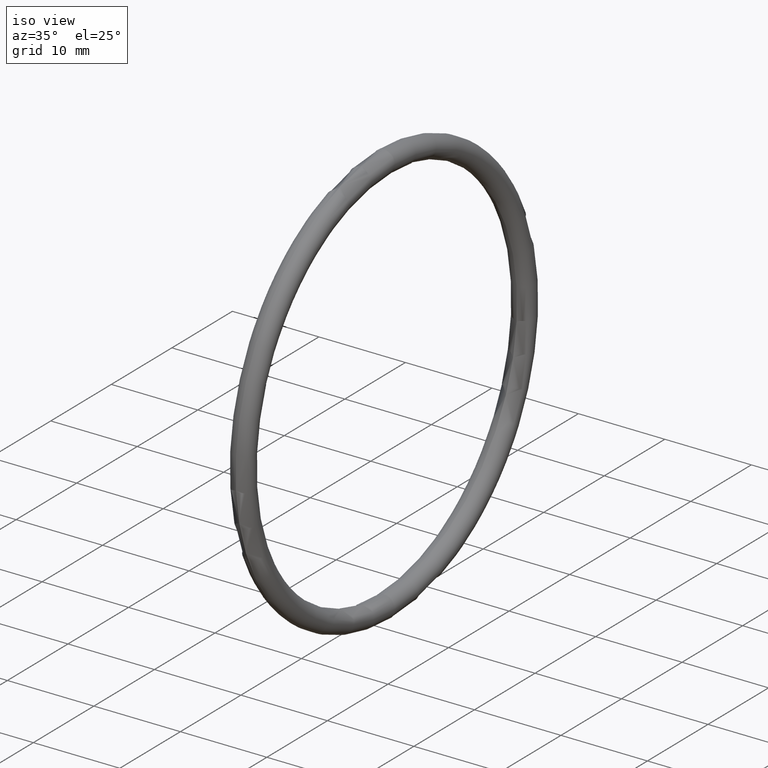
[diagram: clean part render]
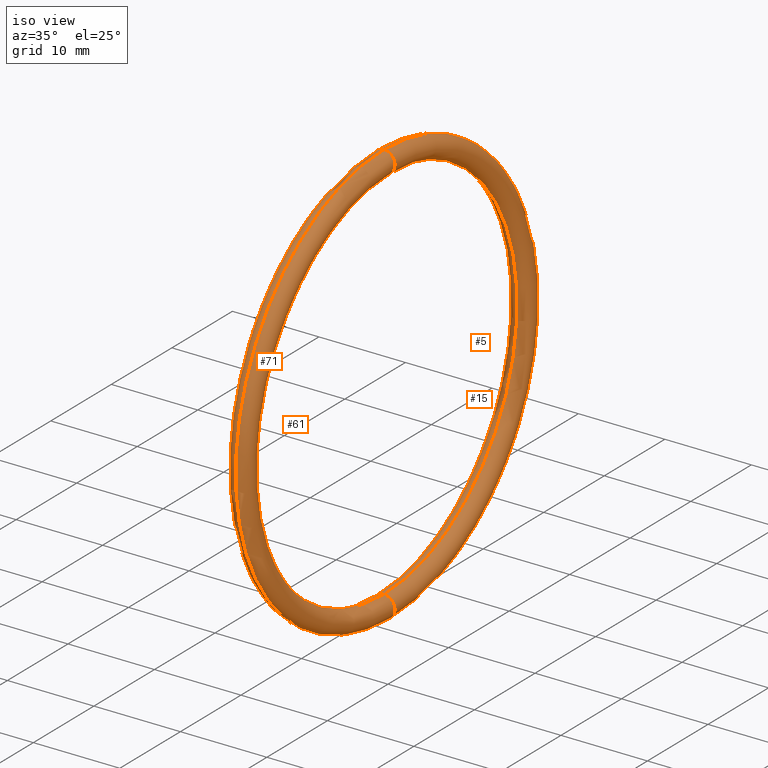
[diagram: same view with one multi-face feature highlighted, each face labeled with its STEP entity id]
A machine part, iso view. The highlighted faces form ONE feature: a constant-radius fillet chain: 4 tangent blend faces with common blend radius 1.27 mm. The faces share edges in the B-rep.
Their STEP definitions:
[1] entity #5 (Torus):
#2 = DIRECTION ( 'NONE',  ( 0.0000000000000000000, 0.0000000000000000000, 1.000000000000000000 ) ) ;
#3 = DIRECTION ( 'NONE',  ( -1.000000000000000000, 0.0000000000000000000, 0.0000000000000000000 ) ) ;
#5 = ADVANCED_FACE ( 'NONE', ( #32 ), #84, .T. ) ;
#9 = DIRECTION ( 'NONE',  ( 0.0000000000000000000, 0.0000000000000000000, 1.000000000000000000 ) ) ;
#10 = DIRECTION ( 'NONE',  ( -1.000000000000000000, 0.0000000000000000000, 0.0000000000000000000 ) ) ;
#11 = CARTESIAN_POINT ( 'NONE',  ( 0.1000000000000001200, 0.0000000000000000000, 0.0000000000000000000 ) ) ;
#13 = EDGE_CURVE ( 'NONE', #21, #91, #97, .T. ) ;
#16 = VERTEX_POINT ( 'NONE', #57 ) ;
#21 = VERTEX_POINT ( 'NONE', #46 ) ;
#22 = CARTESIAN_POINT ( 'NONE',  ( 0.1000000000000001200, 0.0000000000000000000, 0.9149999999999999200 ) ) ;
#23 = AXIS2_PLACEMENT_3D ( 'NONE', #22, #30, #29 ) ;
#24 = CIRCLE ( 'NONE', #23, 0.05000000000000001000 ) ;
#27 = CARTESIAN_POINT ( 'NONE',  ( 0.1000000000000001200, 0.0000000000000000000, 0.0000000000000000000 ) ) ;
#28 = CARTESIAN_POINT ( 'NONE',  ( 0.1000000000000001200, 1.181784161177195800E-016, -0.9649999999999999700 ) ) ;
#29 = DIRECTION ( 'NONE',  ( 0.0000000000000000000, 0.0000000000000000000, -1.000000000000000000 ) ) ;
#30 = DIRECTION ( 'NONE',  ( 0.0000000000000000000, -1.000000000000000000, 0.0000000000000000000 ) ) ;
#31 = AXIS2_PLACEMENT_3D ( 'NONE', #11, #10, #9 ) ;
#32 = FACE_OUTER_BOUND ( 'NONE', #62, .T. ) ;
#46 = CARTESIAN_POINT ( 'NONE',  ( 0.1000000000000001200, 0.0000000000000000000, 0.9649999999999999700 ) ) ;
#49 = DIRECTION ( 'NONE',  ( 0.0000000000000000000, 0.0000000000000000000, 1.000000000000000000 ) ) ;
#50 = DIRECTION ( 'NONE',  ( -1.000000000000000000, 0.0000000000000000000, 0.0000000000000000000 ) ) ;
#51 = AXIS2_PLACEMENT_3D ( 'NONE', #27, #50, #49 ) ;
#57 = CARTESIAN_POINT ( 'NONE',  ( 0.1000000000000001200, 0.0000000000000000000, 0.8649999999999998800 ) ) ;
#62 = EDGE_LOOP ( 'NONE', ( #63, #83, #68, #64 ) ) ;
#63 = ORIENTED_EDGE ( 'NONE', *, *, #13, .F. ) ;
#64 = ORIENTED_EDGE ( 'NONE', *, *, #65, .T. ) ;
#65 = EDGE_CURVE ( 'NONE', #78, #91, #109, .T. ) ;
#68 = ORIENTED_EDGE ( 'NONE', *, *, #119, .T. ) ;
#78 = VERTEX_POINT ( 'NONE', #102 ) ;
#83 = ORIENTED_EDGE ( 'NONE', *, *, #88, .F. ) ;
#84 = TOROIDAL_SURFACE ( 'NONE', #31, 0.9149999999999999200, 0.05000000000000000300 ) ;
#88 = EDGE_CURVE ( 'NONE', #16, #21, #24, .T. ) ;
#91 = VERTEX_POINT ( 'NONE', #28 ) ;
#95 = CARTESIAN_POINT ( 'NONE',  ( 0.1000000000000001200, 0.0000000000000000000, 0.0000000000000000000 ) ) ;
#96 = AXIS2_PLACEMENT_3D ( 'NONE', #95, #3, #2 ) ;
#97 = CIRCLE ( 'NONE', #96, 0.9649999999999999700 ) ;
#102 = CARTESIAN_POINT ( 'NONE',  ( 0.1000000000000001200, 1.059319481262460500E-016, -0.8649999999999998800 ) ) ;
#105 = DIRECTION ( 'NONE',  ( 0.0000000000000000000, -1.224646799147351700E-016, 1.000000000000000000 ) ) ;
#106 = DIRECTION ( 'NONE',  ( 0.0000000000000000000, 1.000000000000000000, 1.224646799147353200E-016 ) ) ;
#107 = CARTESIAN_POINT ( 'NONE',  ( 0.1000000000000001200, 1.120551821219828000E-016, -0.9149999999999999200 ) ) ;
#108 = AXIS2_PLACEMENT_3D ( 'NONE', #107, #106, #105 ) ;
#109 = CIRCLE ( 'NONE', #108, 0.05000000000000001000 ) ;
#111 = CIRCLE ( 'NONE', #51, 0.8649999999999998800 ) ;
#119 = EDGE_CURVE ( 'NONE', #16, #78, #111, .T. ) ;
[2] entity #61 (Torus):
#4 = EDGE_LOOP ( 'NONE', ( #86, #87, #67, #8 ) ) ;
#8 = ORIENTED_EDGE ( 'NONE', *, *, #88, .T. ) ;
#16 = VERTEX_POINT ( 'NONE', #57 ) ;
#17 = FACE_OUTER_BOUND ( 'NONE', #4, .T. ) ;
#18 = DIRECTION ( 'NONE',  ( 0.0000000000000000000, 0.0000000000000000000, 1.000000000000000000 ) ) ;
#19 = DIRECTION ( 'NONE',  ( -1.000000000000000000, 0.0000000000000000000, 0.0000000000000000000 ) ) ;
#21 = VERTEX_POINT ( 'NONE', #46 ) ;
#22 = CARTESIAN_POINT ( 'NONE',  ( 0.1000000000000001200, 0.0000000000000000000, 0.9149999999999999200 ) ) ;
#23 = AXIS2_PLACEMENT_3D ( 'NONE', #22, #30, #29 ) ;
#24 = CIRCLE ( 'NONE', #23, 0.05000000000000001000 ) ;
#26 = CIRCLE ( 'NONE', #115, 0.8649999999999998800 ) ;
#28 = CARTESIAN_POINT ( 'NONE',  ( 0.1000000000000001200, 1.181784161177195800E-016, -0.9649999999999999700 ) ) ;
#29 = DIRECTION ( 'NONE',  ( 0.0000000000000000000, 0.0000000000000000000, -1.000000000000000000 ) ) ;
#30 = DIRECTION ( 'NONE',  ( 0.0000000000000000000, -1.000000000000000000, 0.0000000000000000000 ) ) ;
#35 = CARTESIAN_POINT ( 'NONE',  ( 0.1000000000000001200, 0.0000000000000000000, 0.0000000000000000000 ) ) ;
#40 = EDGE_CURVE ( 'NONE', #91, #21, #93, .T. ) ;
#41 = DIRECTION ( 'NONE',  ( 0.0000000000000000000, 0.0000000000000000000, 1.000000000000000000 ) ) ;
#42 = DIRECTION ( 'NONE',  ( -1.000000000000000000, 0.0000000000000000000, 0.0000000000000000000 ) ) ;
#43 = AXIS2_PLACEMENT_3D ( 'NONE', #35, #42, #41 ) ;
#44 = TOROIDAL_SURFACE ( 'NONE', #43, 0.9149999999999999200, 0.05000000000000000300 ) ;
#45 = CARTESIAN_POINT ( 'NONE',  ( 0.1000000000000001200, 0.0000000000000000000, 0.0000000000000000000 ) ) ;
#46 = CARTESIAN_POINT ( 'NONE',  ( 0.1000000000000001200, 0.0000000000000000000, 0.9649999999999999700 ) ) ;
#57 = CARTESIAN_POINT ( 'NONE',  ( 0.1000000000000001200, 0.0000000000000000000, 0.8649999999999998800 ) ) ;
#61 = ADVANCED_FACE ( 'NONE', ( #17 ), #44, .T. ) ;
#65 = EDGE_CURVE ( 'NONE', #78, #91, #109, .T. ) ;
#67 = ORIENTED_EDGE ( 'NONE', *, *, #104, .T. ) ;
#78 = VERTEX_POINT ( 'NONE', #102 ) ;
#86 = ORIENTED_EDGE ( 'NONE', *, *, #40, .F. ) ;
#87 = ORIENTED_EDGE ( 'NONE', *, *, #65, .F. ) ;
#88 = EDGE_CURVE ( 'NONE', #16, #21, #24, .T. ) ;
#91 = VERTEX_POINT ( 'NONE', #28 ) ;
#92 = AXIS2_PLACEMENT_3D ( 'NONE', #45, #19, #18 ) ;
#93 = CIRCLE ( 'NONE', #92, 0.9649999999999999700 ) ;
#102 = CARTESIAN_POINT ( 'NONE',  ( 0.1000000000000001200, 1.059319481262460500E-016, -0.8649999999999998800 ) ) ;
#104 = EDGE_CURVE ( 'NONE', #78, #16, #26, .T. ) ;
#105 = DIRECTION ( 'NONE',  ( 0.0000000000000000000, -1.224646799147351700E-016, 1.000000000000000000 ) ) ;
#106 = DIRECTION ( 'NONE',  ( 0.0000000000000000000, 1.000000000000000000, 1.224646799147353200E-016 ) ) ;
#107 = CARTESIAN_POINT ( 'NONE',  ( 0.1000000000000001200, 1.120551821219828000E-016, -0.9149999999999999200 ) ) ;
#108 = AXIS2_PLACEMENT_3D ( 'NONE', #107, #106, #105 ) ;
#109 = CIRCLE ( 'NONE', #108, 0.05000000000000001000 ) ;
#112 = DIRECTION ( 'NONE',  ( 0.0000000000000000000, 0.0000000000000000000, 1.000000000000000000 ) ) ;
#113 = DIRECTION ( 'NONE',  ( -1.000000000000000000, 0.0000000000000000000, 0.0000000000000000000 ) ) ;
#114 = CARTESIAN_POINT ( 'NONE',  ( 0.1000000000000001200, 0.0000000000000000000, 0.0000000000000000000 ) ) ;
#115 = AXIS2_PLACEMENT_3D ( 'NONE', #114, #113, #112 ) ;
[3] entity #71 (Torus):
#6 = ORIENTED_EDGE ( 'NONE', *, *, #52, .T. ) ;
#16 = VERTEX_POINT ( 'NONE', #57 ) ;
#18 = DIRECTION ( 'NONE',  ( 0.0000000000000000000, 0.0000000000000000000, 1.000000000000000000 ) ) ;
#19 = DIRECTION ( 'NONE',  ( -1.000000000000000000, 0.0000000000000000000, 0.0000000000000000000 ) ) ;
#21 = VERTEX_POINT ( 'NONE', #46 ) ;
#25 = DIRECTION ( 'NONE',  ( 0.0000000000000000000, 0.0000000000000000000, 1.000000000000000000 ) ) ;
#26 = CIRCLE ( 'NONE', #115, 0.8649999999999998800 ) ;
#28 = CARTESIAN_POINT ( 'NONE',  ( 0.1000000000000001200, 1.181784161177195800E-016, -0.9649999999999999700 ) ) ;
#36 = DIRECTION ( 'NONE',  ( 0.0000000000000000000, 0.0000000000000000000, -1.000000000000000000 ) ) ;
#37 = DIRECTION ( 'NONE',  ( 0.0000000000000000000, -1.000000000000000000, 0.0000000000000000000 ) ) ;
#38 = AXIS2_PLACEMENT_3D ( 'NONE', #94, #37, #36 ) ;
#39 = CIRCLE ( 'NONE', #38, 0.05000000000000001000 ) ;
#40 = EDGE_CURVE ( 'NONE', #91, #21, #93, .T. ) ;
#45 = CARTESIAN_POINT ( 'NONE',  ( 0.1000000000000001200, 0.0000000000000000000, 0.0000000000000000000 ) ) ;
#46 = CARTESIAN_POINT ( 'NONE',  ( 0.1000000000000001200, 0.0000000000000000000, 0.9649999999999999700 ) ) ;
#52 = EDGE_CURVE ( 'NONE', #21, #16, #39, .T. ) ;
#57 = CARTESIAN_POINT ( 'NONE',  ( 0.1000000000000001200, 0.0000000000000000000, 0.8649999999999998800 ) ) ;
#69 = ORIENTED_EDGE ( 'NONE', *, *, #40, .T. ) ;
#70 = EDGE_CURVE ( 'NONE', #91, #78, #75, .T. ) ;
#71 = ADVANCED_FACE ( 'NONE', ( #76 ), #101, .T. ) ;
#72 = DIRECTION ( 'NONE',  ( 0.0000000000000000000, -1.224646799147351700E-016, 1.000000000000000000 ) ) ;
#73 = DIRECTION ( 'NONE',  ( 0.0000000000000000000, 1.000000000000000000, 1.224646799147353200E-016 ) ) ;
#74 = AXIS2_PLACEMENT_3D ( 'NONE', #110, #73, #72 ) ;
#75 = CIRCLE ( 'NONE', #74, 0.05000000000000001000 ) ;
#76 = FACE_OUTER_BOUND ( 'NONE', #85, .T. ) ;
#78 = VERTEX_POINT ( 'NONE', #102 ) ;
#82 = ORIENTED_EDGE ( 'NONE', *, *, #104, .F. ) ;
#85 = EDGE_LOOP ( 'NONE', ( #118, #69, #6, #82 ) ) ;
#91 = VERTEX_POINT ( 'NONE', #28 ) ;
#92 = AXIS2_PLACEMENT_3D ( 'NONE', #45, #19, #18 ) ;
#93 = CIRCLE ( 'NONE', #92, 0.9649999999999999700 ) ;
#94 = CARTESIAN_POINT ( 'NONE',  ( 0.1000000000000001200, 0.0000000000000000000, 0.9149999999999999200 ) ) ;
#99 = DIRECTION ( 'NONE',  ( -1.000000000000000000, 0.0000000000000000000, 0.0000000000000000000 ) ) ;
#100 = AXIS2_PLACEMENT_3D ( 'NONE', #103, #99, #25 ) ;
#101 = TOROIDAL_SURFACE ( 'NONE', #100, 0.9149999999999999200, 0.05000000000000000300 ) ;
#102 = CARTESIAN_POINT ( 'NONE',  ( 0.1000000000000001200, 1.059319481262460500E-016, -0.8649999999999998800 ) ) ;
#103 = CARTESIAN_POINT ( 'NONE',  ( 0.1000000000000001200, 0.0000000000000000000, 0.0000000000000000000 ) ) ;
#104 = EDGE_CURVE ( 'NONE', #78, #16, #26, .T. ) ;
#110 = CARTESIAN_POINT ( 'NONE',  ( 0.1000000000000001200, 1.120551821219828000E-016, -0.9149999999999999200 ) ) ;
#112 = DIRECTION ( 'NONE',  ( 0.0000000000000000000, 0.0000000000000000000, 1.000000000000000000 ) ) ;
#113 = DIRECTION ( 'NONE',  ( -1.000000000000000000, 0.0000000000000000000, 0.0000000000000000000 ) ) ;
#114 = CARTESIAN_POINT ( 'NONE',  ( 0.1000000000000001200, 0.0000000000000000000, 0.0000000000000000000 ) ) ;
#115 = AXIS2_PLACEMENT_3D ( 'NONE', #114, #113, #112 ) ;
#118 = ORIENTED_EDGE ( 'NONE', *, *, #70, .F. ) ;
[4] entity #15 (Torus):
#1 = TOROIDAL_SURFACE ( 'NONE', #20, 0.9149999999999999200, 0.05000000000000000300 ) ;
#2 = DIRECTION ( 'NONE',  ( 0.0000000000000000000, 0.0000000000000000000, 1.000000000000000000 ) ) ;
#3 = DIRECTION ( 'NONE',  ( -1.000000000000000000, 0.0000000000000000000, 0.0000000000000000000 ) ) ;
#12 = ORIENTED_EDGE ( 'NONE', *, *, #70, .T. ) ;
#13 = EDGE_CURVE ( 'NONE', #21, #91, #97, .T. ) ;
#14 = ORIENTED_EDGE ( 'NONE', *, *, #119, .F. ) ;
#15 = ADVANCED_FACE ( 'NONE', ( #98 ), #1, .T. ) ;
#16 = VERTEX_POINT ( 'NONE', #57 ) ;
#20 = AXIS2_PLACEMENT_3D ( 'NONE', #56, #55, #54 ) ;
#21 = VERTEX_POINT ( 'NONE', #46 ) ;
#27 = CARTESIAN_POINT ( 'NONE',  ( 0.1000000000000001200, 0.0000000000000000000, 0.0000000000000000000 ) ) ;
#28 = CARTESIAN_POINT ( 'NONE',  ( 0.1000000000000001200, 1.181784161177195800E-016, -0.9649999999999999700 ) ) ;
#36 = DIRECTION ( 'NONE',  ( 0.0000000000000000000, 0.0000000000000000000, -1.000000000000000000 ) ) ;
#37 = DIRECTION ( 'NONE',  ( 0.0000000000000000000, -1.000000000000000000, 0.0000000000000000000 ) ) ;
#38 = AXIS2_PLACEMENT_3D ( 'NONE', #94, #37, #36 ) ;
#39 = CIRCLE ( 'NONE', #38, 0.05000000000000001000 ) ;
#46 = CARTESIAN_POINT ( 'NONE',  ( 0.1000000000000001200, 0.0000000000000000000, 0.9649999999999999700 ) ) ;
#49 = DIRECTION ( 'NONE',  ( 0.0000000000000000000, 0.0000000000000000000, 1.000000000000000000 ) ) ;
#50 = DIRECTION ( 'NONE',  ( -1.000000000000000000, 0.0000000000000000000, 0.0000000000000000000 ) ) ;
#51 = AXIS2_PLACEMENT_3D ( 'NONE', #27, #50, #49 ) ;
#52 = EDGE_CURVE ( 'NONE', #21, #16, #39, .T. ) ;
#54 = DIRECTION ( 'NONE',  ( 0.0000000000000000000, 0.0000000000000000000, 1.000000000000000000 ) ) ;
#55 = DIRECTION ( 'NONE',  ( -1.000000000000000000, 0.0000000000000000000, 0.0000000000000000000 ) ) ;
#56 = CARTESIAN_POINT ( 'NONE',  ( 0.1000000000000001200, 0.0000000000000000000, 0.0000000000000000000 ) ) ;
#57 = CARTESIAN_POINT ( 'NONE',  ( 0.1000000000000001200, 0.0000000000000000000, 0.8649999999999998800 ) ) ;
#70 = EDGE_CURVE ( 'NONE', #91, #78, #75, .T. ) ;
#72 = DIRECTION ( 'NONE',  ( 0.0000000000000000000, -1.224646799147351700E-016, 1.000000000000000000 ) ) ;
#73 = DIRECTION ( 'NONE',  ( 0.0000000000000000000, 1.000000000000000000, 1.224646799147353200E-016 ) ) ;
#74 = AXIS2_PLACEMENT_3D ( 'NONE', #110, #73, #72 ) ;
#75 = CIRCLE ( 'NONE', #74, 0.05000000000000001000 ) ;
#77 = EDGE_LOOP ( 'NONE', ( #116, #117, #12, #14 ) ) ;
#78 = VERTEX_POINT ( 'NONE', #102 ) ;
#91 = VERTEX_POINT ( 'NONE', #28 ) ;
#94 = CARTESIAN_POINT ( 'NONE',  ( 0.1000000000000001200, 0.0000000000000000000, 0.9149999999999999200 ) ) ;
#95 = CARTESIAN_POINT ( 'NONE',  ( 0.1000000000000001200, 0.0000000000000000000, 0.0000000000000000000 ) ) ;
#96 = AXIS2_PLACEMENT_3D ( 'NONE', #95, #3, #2 ) ;
#97 = CIRCLE ( 'NONE', #96, 0.9649999999999999700 ) ;
#98 = FACE_OUTER_BOUND ( 'NONE', #77, .T. ) ;
#102 = CARTESIAN_POINT ( 'NONE',  ( 0.1000000000000001200, 1.059319481262460500E-016, -0.8649999999999998800 ) ) ;
#110 = CARTESIAN_POINT ( 'NONE',  ( 0.1000000000000001200, 1.120551821219828000E-016, -0.9149999999999999200 ) ) ;
#111 = CIRCLE ( 'NONE', #51, 0.8649999999999998800 ) ;
#116 = ORIENTED_EDGE ( 'NONE', *, *, #52, .F. ) ;
#117 = ORIENTED_EDGE ( 'NONE', *, *, #13, .T. ) ;
#119 = EDGE_CURVE ( 'NONE', #16, #78, #111, .T. ) ;